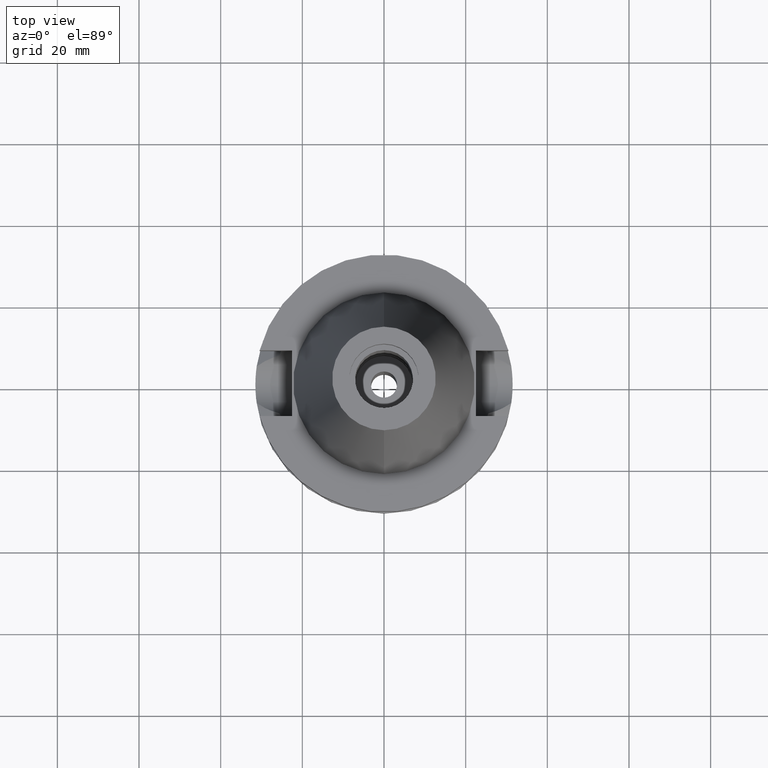
[diagram: clean part render]
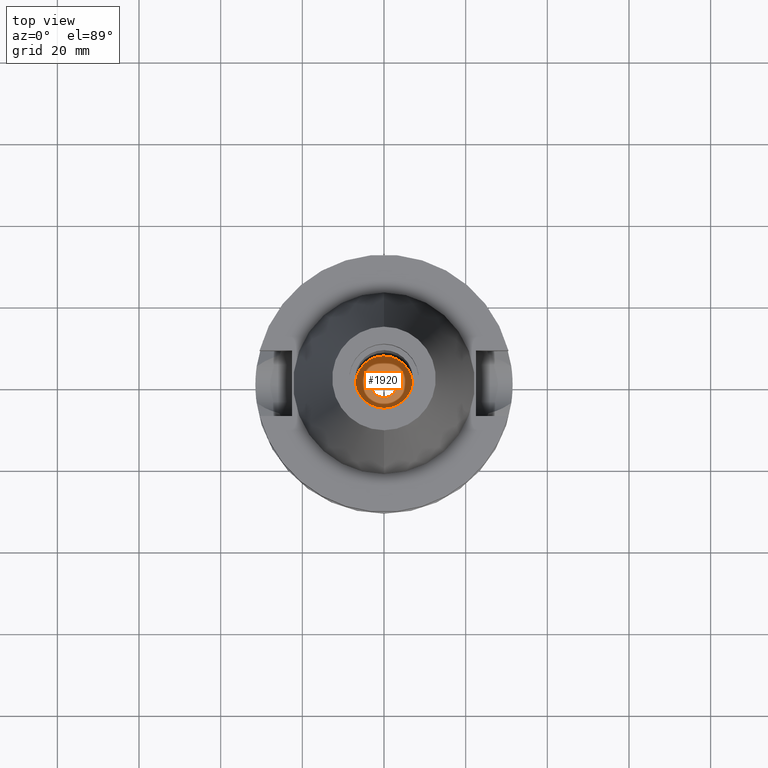
[diagram: same view with one face highlighted and labeled with its STEP entity id]
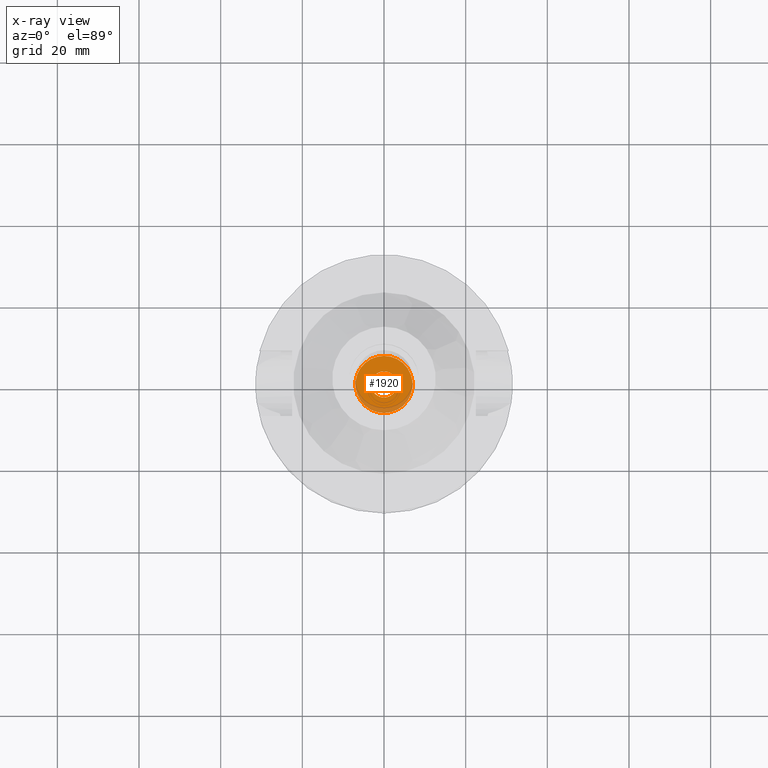
[diagram: x-ray of the same camera — body ghosted, the highlighted face saturated]
A machine part, top view. The second image highlights one B-rep face of the part: STEP entity #1920.
The next image is the same camera in x-ray: the body ghosted, the highlighted face saturated — about 14% of this face is hidden behind the body in this view.
In plain terms, the highlighted planar face has unit normal (0, 0, -1).
Its self-contained STEP definition (entity closure, byte-faithful):
#15 = PLANE ( 'NONE',  #467 ) ;
#60 = CARTESIAN_POINT ( 'NONE',  ( 0.0000000000000000000, 0.0000000000000000000, -19.59999999999999787 ) ) ;
#63 = DIRECTION ( 'NONE',  ( 0.0000000000000000000, 0.0000000000000000000, -1.000000000000000000 ) ) ;
#118 = CIRCLE ( 'NONE', #1580, 7.000000000000000000 ) ;
#137 = EDGE_LOOP ( 'NONE', ( #1676, #1188 ) ) ;
#238 = CARTESIAN_POINT ( 'NONE',  ( 0.0000000000000000000, 7.000000000000000000, -19.59999999999999787 ) ) ;
#266 = AXIS2_PLACEMENT_3D ( 'NONE', #2243, #363, #2007 ) ;
#309 = AXIS2_PLACEMENT_3D ( 'NONE', #356, #1835, #671 ) ;
#356 = CARTESIAN_POINT ( 'NONE',  ( 0.0000000000000000000, 0.0000000000000000000, -19.59999999999999787 ) ) ;
#363 = DIRECTION ( 'NONE',  ( 0.0000000000000000000, 0.0000000000000000000, 1.000000000000000000 ) ) ;
#382 = VERTEX_POINT ( 'NONE', #1248 ) ;
#467 = AXIS2_PLACEMENT_3D ( 'NONE', #1940, #2902, #1732 ) ;
#499 = DIRECTION ( 'NONE',  ( 0.0000000000000000000, 1.000000000000000000, 0.0000000000000000000 ) ) ;
#528 = EDGE_CURVE ( 'NONE', #1214, #709, #118, .T. ) ;
#668 = CIRCLE ( 'NONE', #2529, 3.200000000000000178 ) ;
#671 = DIRECTION ( 'NONE',  ( 0.0000000000000000000, 1.000000000000000000, 0.0000000000000000000 ) ) ;
#709 = VERTEX_POINT ( 'NONE', #238 ) ;
#755 = CIRCLE ( 'NONE', #309, 7.000000000000000000 ) ;
#893 = ORIENTED_EDGE ( 'NONE', *, *, #973, .F. ) ;
#973 = EDGE_CURVE ( 'NONE', #709, #1214, #755, .T. ) ;
#1128 = CIRCLE ( 'NONE', #266, 3.200000000000000178 ) ;
#1131 = EDGE_CURVE ( 'NONE', #382, #2251, #668, .T. ) ;
#1188 = ORIENTED_EDGE ( 'NONE', *, *, #2130, .F. ) ;
#1214 = VERTEX_POINT ( 'NONE', #1244 ) ;
#1242 = FACE_OUTER_BOUND ( 'NONE', #1340, .T. ) ;
#1244 = CARTESIAN_POINT ( 'NONE',  ( 0.0000000000000000000, -7.000000000000000000, -19.59999999999999787 ) ) ;
#1248 = CARTESIAN_POINT ( 'NONE',  ( 0.0000000000000000000, 3.200000000000000178, -19.59999999999999787 ) ) ;
#1340 = EDGE_LOOP ( 'NONE', ( #893, #2131 ) ) ;
#1446 = FACE_BOUND ( 'NONE', #137, .T. ) ;
#1580 = AXIS2_PLACEMENT_3D ( 'NONE', #2215, #63, #1989 ) ;
#1676 = ORIENTED_EDGE ( 'NONE', *, *, #1131, .F. ) ;
#1732 = DIRECTION ( 'NONE',  ( 0.0000000000000000000, -1.000000000000000000, 0.0000000000000000000 ) ) ;
#1835 = DIRECTION ( 'NONE',  ( 0.0000000000000000000, 0.0000000000000000000, -1.000000000000000000 ) ) ;
#1920 = ADVANCED_FACE ( 'NONE', ( #1242, #1446 ), #15, .F. ) ;
#1940 = CARTESIAN_POINT ( 'NONE',  ( 0.0000000000000000000, 0.0000000000000000000, -19.59999999999999787 ) ) ;
#1989 = DIRECTION ( 'NONE',  ( 0.0000000000000000000, -1.000000000000000000, 0.0000000000000000000 ) ) ;
#2007 = DIRECTION ( 'NONE',  ( 0.0000000000000000000, -1.000000000000000000, 0.0000000000000000000 ) ) ;
#2130 = EDGE_CURVE ( 'NONE', #2251, #382, #1128, .T. ) ;
#2131 = ORIENTED_EDGE ( 'NONE', *, *, #528, .F. ) ;
#2215 = CARTESIAN_POINT ( 'NONE',  ( 0.0000000000000000000, 0.0000000000000000000, -19.59999999999999787 ) ) ;
#2243 = CARTESIAN_POINT ( 'NONE',  ( 0.0000000000000000000, 0.0000000000000000000, -19.59999999999999787 ) ) ;
#2251 = VERTEX_POINT ( 'NONE', #2365 ) ;
#2365 = CARTESIAN_POINT ( 'NONE',  ( 0.0000000000000000000, -3.200000000000000178, -19.59999999999999787 ) ) ;
#2529 = AXIS2_PLACEMENT_3D ( 'NONE', #60, #2664, #499 ) ;
#2664 = DIRECTION ( 'NONE',  ( 0.0000000000000000000, 0.0000000000000000000, 1.000000000000000000 ) ) ;
#2902 = DIRECTION ( 'NONE',  ( 0.0000000000000000000, 0.0000000000000000000, -1.000000000000000000 ) ) ;